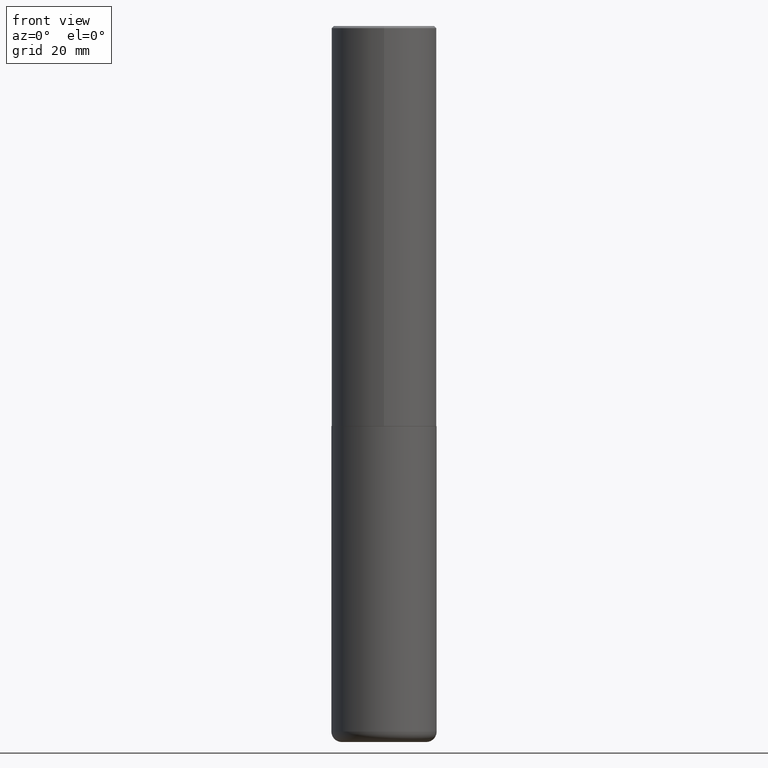
[diagram: clean part render]
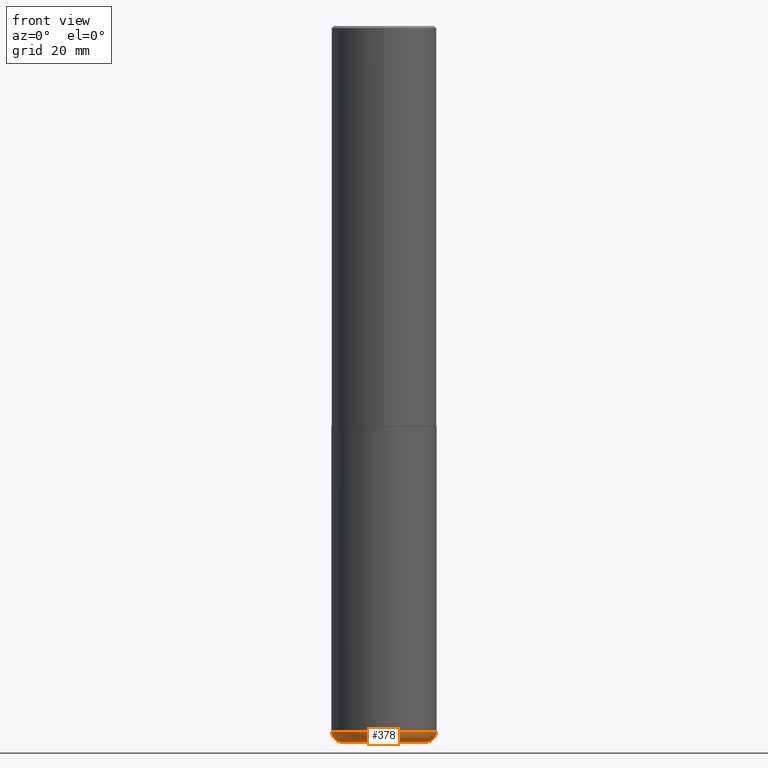
[diagram: same view with one face highlighted and labeled with its STEP entity id]
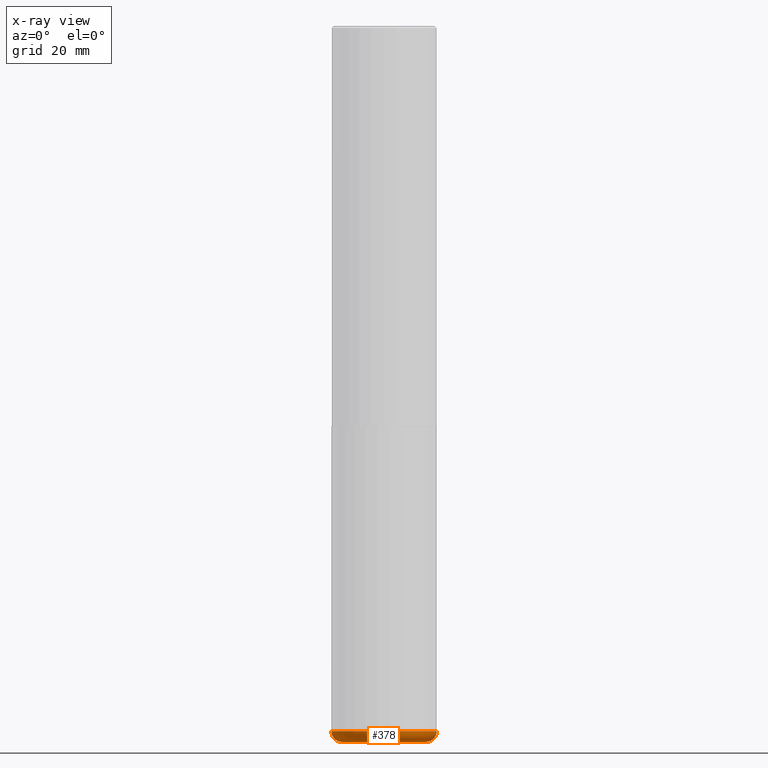
[diagram: x-ray of the same camera — body ghosted, the highlighted face saturated]
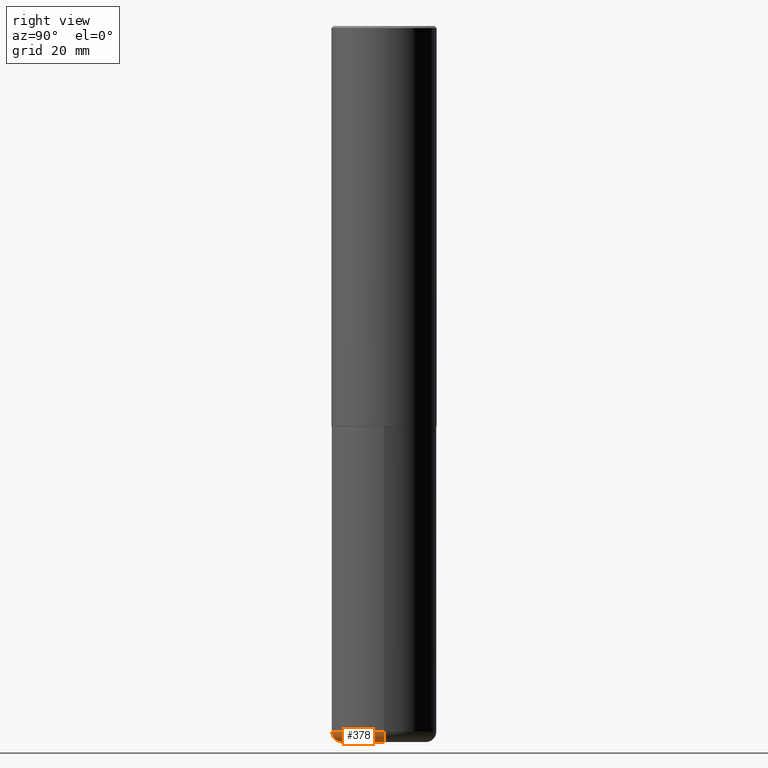
[diagram: same view with one face highlighted and labeled with its STEP entity id]
A machine part, front view. The second image highlights one B-rep face of the part: STEP entity #378.
The next image is the same camera in x-ray: the body ghosted, the highlighted face saturated — about 0% of this face is hidden behind the body in this view.
A second angle (right view) of the same face is appended — the face is thin or edge-on in the first view.
In plain terms, the highlighted toroidal blend (fillet) surface has major radius 10.0012 mm and minor (blend) radius 2.4994 mm.
Its self-contained STEP definition (entity closure, byte-faithful):
#1 = CARTESIAN_POINT ( 'NONE',  ( 1.612664404238788252E-28, -2.302457368900112328E-14, -6.594500000000000028 ) ) ;
#8 = CARTESIAN_POINT ( 'NONE',  ( 0.3937499999999999889, -2.577411524334009159E-14, -6.594500000000000028 ) ) ;
#26 = CARTESIAN_POINT ( 'NONE',  ( -0.3937499999999999889, -2.004900552282284682E-14, -6.692900000000000738 ) ) ;
#35 = DIRECTION ( 'NONE',  ( -1.000000000000000000, 7.105427357601011325E-15, 0.000000000000000000 ) ) ;
#67 = DIRECTION ( 'NONE',  ( -2.445468806185136597E-29, 3.491481338843145583E-15, 1.000000000000000000 ) ) ;
#70 = DIRECTION ( 'NONE',  ( -6.982962677686266711E-15, -1.000000000000000000, 3.491481338843145583E-15 ) ) ;
#84 = ORIENTED_EDGE ( 'NONE', *, *, #114, .T. ) ;
#99 = DIRECTION ( 'NONE',  ( -2.445468806185136597E-29, 3.491481338843145583E-15, 1.000000000000000000 ) ) ;
#108 = CARTESIAN_POINT ( 'NONE',  ( 0.3937499999999999889, -2.611767700708225927E-14, -6.692900000000000738 ) ) ;
#110 = EDGE_CURVE ( 'NONE', #298, #332, #342, .T. ) ;
#114 = EDGE_CURVE ( 'NONE', #356, #300, #285, .T. ) ;
#115 = CARTESIAN_POINT ( 'NONE',  ( -0.4921500000000002539, -1.952763761495778959E-14, -6.594500000000000028 ) ) ;
#119 = EDGE_CURVE ( 'NONE', #300, #332, #277, .T. ) ;
#120 = AXIS2_PLACEMENT_3D ( 'NONE', #1, #99, #237 ) ;
#127 = CARTESIAN_POINT ( 'NONE',  ( 1.636727817291650190E-28, -2.336813545274329412E-14, -6.692900000000000738 ) ) ;
#132 = CARTESIAN_POINT ( 'NONE',  ( -0.3937499999999999889, -2.022681166694573006E-14, -6.594500000000000028 ) ) ;
#167 = ORIENTED_EDGE ( 'NONE', *, *, #242, .F. ) ;
#176 = ORIENTED_EDGE ( 'NONE', *, *, #110, .F. ) ;
#189 = FACE_OUTER_BOUND ( 'NONE', #206, .T. ) ;
#191 = AXIS2_PLACEMENT_3D ( 'NONE', #127, #259, #380 ) ;
#206 = EDGE_LOOP ( 'NONE', ( #167, #84, #364, #176 ) ) ;
#237 = DIRECTION ( 'NONE',  ( 1.000000000000000000, -6.982962677686266711E-15, 0.000000000000000000 ) ) ;
#242 = EDGE_CURVE ( 'NONE', #356, #298, #381, .T. ) ;
#253 = TOROIDAL_SURFACE ( 'NONE', #372, 0.3937499999999999889, 0.09840000000000061198 ) ;
#259 = DIRECTION ( 'NONE',  ( -2.445468806185136597E-29, 3.491481338843145583E-15, 1.000000000000000000 ) ) ;
#263 = DIRECTION ( 'NONE',  ( 7.105427357601001859E-15, 1.000000000000000000, -3.491481338843145583E-15 ) ) ;
#277 = CIRCLE ( 'NONE', #404, 0.09840000000000065361 ) ;
#285 = CIRCLE ( 'NONE', #191, 0.3937499999999999889 ) ;
#288 = DIRECTION ( 'NONE',  ( 1.000000000000000000, -6.982962677686254878E-15, 0.000000000000000000 ) ) ;
#298 = VERTEX_POINT ( 'NONE', #115 ) ;
#300 = VERTEX_POINT ( 'NONE', #108 ) ;
#312 = DIRECTION ( 'NONE',  ( 1.000000000000000000, -6.982962677686264344E-15, 4.883557194083112340E-29 ) ) ;
#332 = VERTEX_POINT ( 'NONE', #368 ) ;
#342 = CIRCLE ( 'NONE', #120, 0.4921499999999999209 ) ;
#356 = VERTEX_POINT ( 'NONE', #26 ) ;
#364 = ORIENTED_EDGE ( 'NONE', *, *, #119, .T. ) ;
#368 = CARTESIAN_POINT ( 'NONE',  ( 0.4921500000000002539, -2.646123877082442063E-14, -6.594500000000000028 ) ) ;
#372 = AXIS2_PLACEMENT_3D ( 'NONE', #398, #67, #312 ) ;
#375 = AXIS2_PLACEMENT_3D ( 'NONE', #132, #263, #35 ) ;
#378 = ADVANCED_FACE ( 'NONE', ( #189 ), #253, .T. ) ;
#380 = DIRECTION ( 'NONE',  ( 1.000000000000000000, -6.982962677686266711E-15, 0.000000000000000000 ) ) ;
#381 = CIRCLE ( 'NONE', #375, 0.09840000000000065361 ) ;
#398 = CARTESIAN_POINT ( 'NONE',  ( 1.612664404238788252E-28, -2.302457368900112328E-14, -6.594500000000000028 ) ) ;
#404 = AXIS2_PLACEMENT_3D ( 'NONE', #8, #70, #288 ) ;